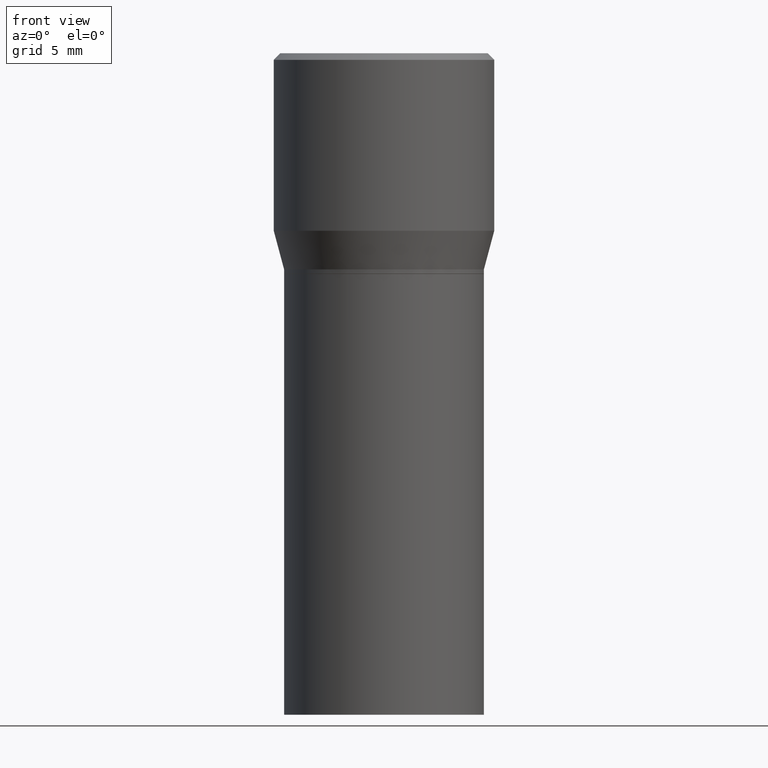
[diagram: clean part render]
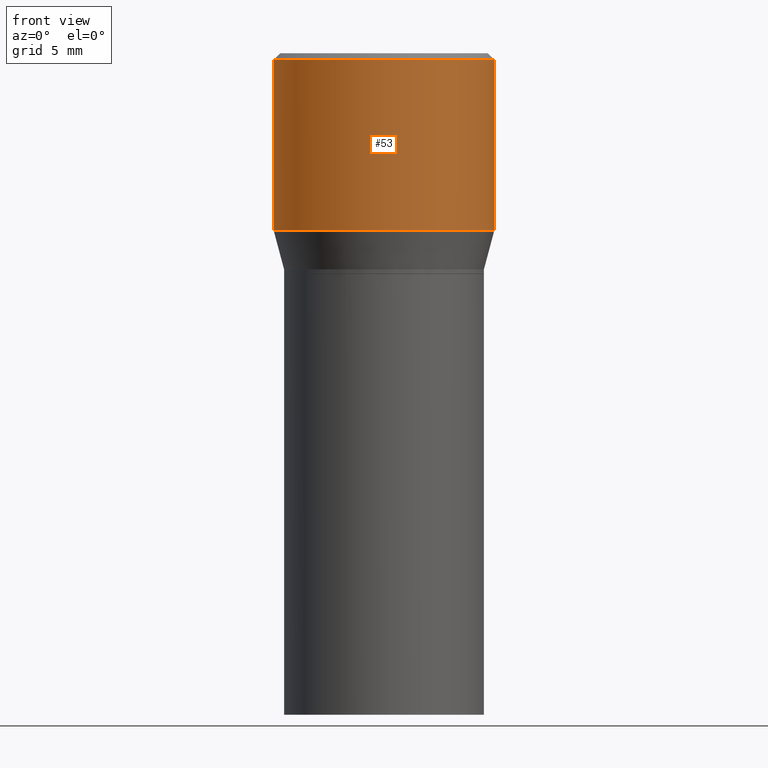
[diagram: same view with one face highlighted and labeled with its STEP entity id]
A machine part, front view. The second image highlights one B-rep face of the part: STEP entity #53.
In plain terms, the highlighted cylindrical surface (partial cylindrical patch) has radius 6.35 mm, axis along (-0, 0, 1).
Its self-contained STEP definition (entity closure, byte-faithful):
#8 = CARTESIAN_POINT ( 'NONE',  ( 3.668203209277705088E-31, -5.237222008264718399E-17, -0.01499999999999999944 ) ) ;
#12 = EDGE_LOOP ( 'NONE', ( #218, #349, #434, #422 ) ) ;
#14 = CARTESIAN_POINT ( 'NONE',  ( 0.2500000000000000000, -1.798112889504214151E-15, -0.01499999999999999944 ) ) ;
#47 = LINE ( 'NONE', #118, #170 ) ;
#53 = ADVANCED_FACE ( 'NONE', ( #346 ), #304, .T. ) ;
#84 = AXIS2_PLACEMENT_3D ( 'NONE', #252, #277, #419 ) ;
#116 = CARTESIAN_POINT ( 'NONE',  ( 0.000000000000000000, 0.000000000000000000, 0.000000000000000000 ) ) ;
#118 = CARTESIAN_POINT ( 'NONE',  ( 0.2500000000000000000, -1.745740669421566678E-15, 1.219044193948983948E-29 ) ) ;
#120 = EDGE_CURVE ( 'NONE', #329, #200, #460, .T. ) ;
#123 = AXIS2_PLACEMENT_3D ( 'NONE', #8, #319, #133 ) ;
#133 = DIRECTION ( 'NONE',  ( 1.000000000000000000, -6.982962677686266711E-15, 0.000000000000000000 ) ) ;
#164 = DIRECTION ( 'NONE',  ( 1.000000000000000000, -6.982962677686266711E-15, 4.876176775795935793E-29 ) ) ;
#166 = EDGE_CURVE ( 'NONE', #210, #200, #47, .T. ) ;
#170 = VECTOR ( 'NONE', #368, 39.37007874015748143 ) ;
#200 = VERTEX_POINT ( 'NONE', #14 ) ;
#210 = VERTEX_POINT ( 'NONE', #342 ) ;
#218 = ORIENTED_EDGE ( 'NONE', *, *, #247, .F. ) ;
#227 = LINE ( 'NONE', #446, #228 ) ;
#228 = VECTOR ( 'NONE', #336, 39.37007874015748143 ) ;
#232 = VERTEX_POINT ( 'NONE', #408 ) ;
#247 = EDGE_CURVE ( 'NONE', #232, #329, #227, .T. ) ;
#252 = CARTESIAN_POINT ( 'NONE',  ( 9.842606206466859638E-30, -1.405263310189985589E-15, -0.4024834085625100810 ) ) ;
#272 = DIRECTION ( 'NONE',  ( -2.445468806185136597E-29, 3.491481338843145583E-15, 1.000000000000000000 ) ) ;
#277 = DIRECTION ( 'NONE',  ( -2.445468806185136597E-29, 3.491481338843145583E-15, 1.000000000000000000 ) ) ;
#296 = CIRCLE ( 'NONE', #84, 0.2500000000000000000 ) ;
#304 = CYLINDRICAL_SURFACE ( 'NONE', #429, 0.2500000000000000000 ) ;
#319 = DIRECTION ( 'NONE',  ( -2.445468806185136597E-29, 3.491481338843145583E-15, 1.000000000000000000 ) ) ;
#329 = VERTEX_POINT ( 'NONE', #461 ) ;
#336 = DIRECTION ( 'NONE',  ( -2.445468806185136877E-29, 3.491481338843145188E-15, 1.000000000000000000 ) ) ;
#342 = CARTESIAN_POINT ( 'NONE',  ( 0.2500000000000000000, -3.151003979611552069E-15, -0.4024834085625100810 ) ) ;
#346 = FACE_OUTER_BOUND ( 'NONE', #12, .T. ) ;
#349 = ORIENTED_EDGE ( 'NONE', *, *, #359, .T. ) ;
#359 = EDGE_CURVE ( 'NONE', #232, #210, #296, .T. ) ;
#368 = DIRECTION ( 'NONE',  ( -2.445468806185136877E-29, 3.491481338843145188E-15, 1.000000000000000000 ) ) ;
#408 = CARTESIAN_POINT ( 'NONE',  ( -0.2500000000000000000, 3.710935292102651716E-16, -0.4024834085625100810 ) ) ;
#419 = DIRECTION ( 'NONE',  ( 1.000000000000000000, -6.982962677686265922E-15, 0.000000000000000000 ) ) ;
#422 = ORIENTED_EDGE ( 'NONE', *, *, #120, .F. ) ;
#429 = AXIS2_PLACEMENT_3D ( 'NONE', #116, #272, #164 ) ;
#434 = ORIENTED_EDGE ( 'NONE', *, *, #166, .T. ) ;
#446 = CARTESIAN_POINT ( 'NONE',  ( -0.2500000000000000000, 1.776356839400250465E-15, -1.229733772563726445E-29 ) ) ;
#460 = CIRCLE ( 'NONE', #123, 0.2500000000000000000 ) ;
#461 = CARTESIAN_POINT ( 'NONE',  ( -0.2500000000000000000, 1.047539074263934229E-15, -0.01499999999999999944 ) ) ;